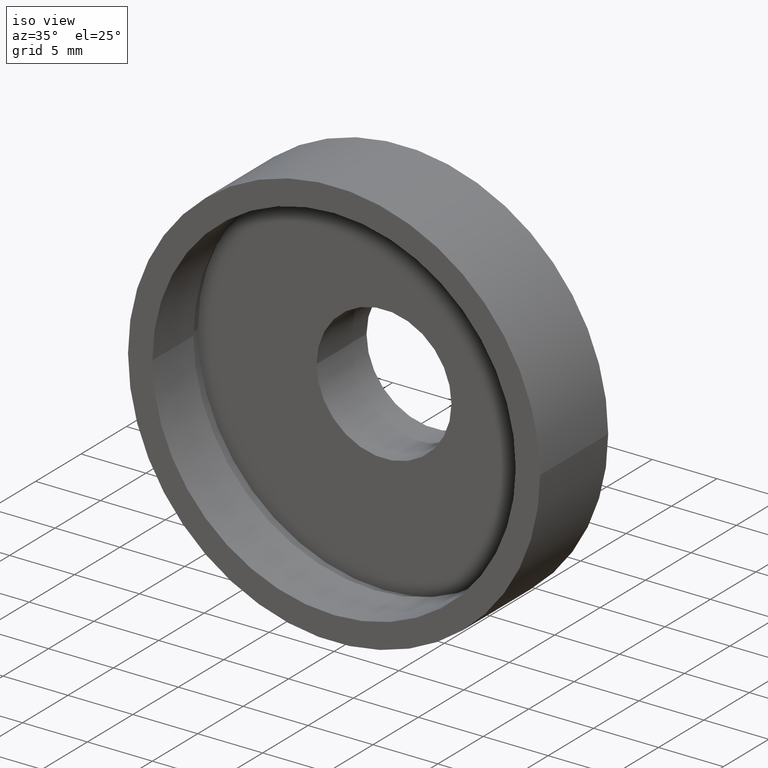
[diagram: clean part render]
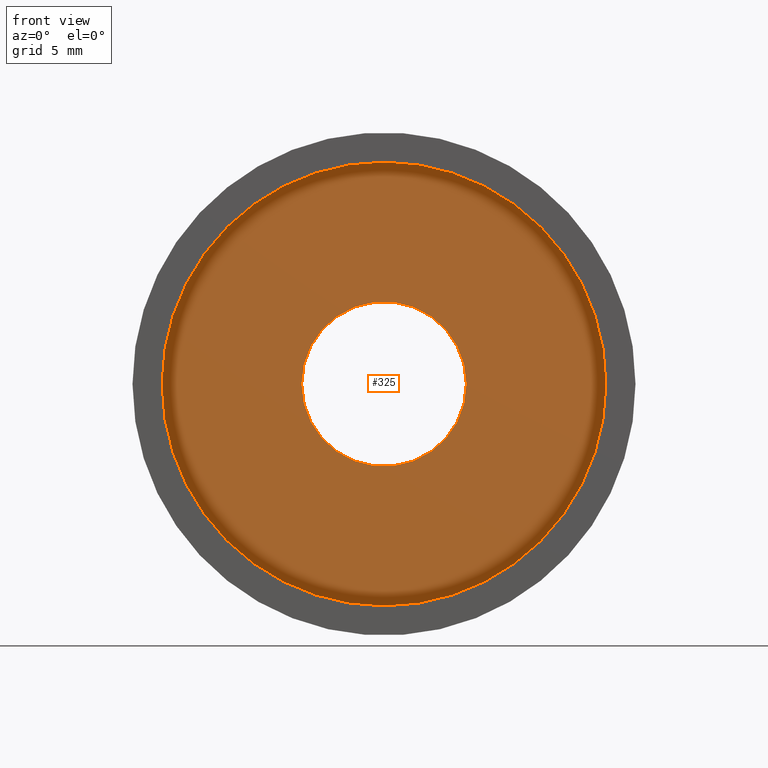
[diagram: tour spotlight — one face highlighted and labeled with its STEP entity id]
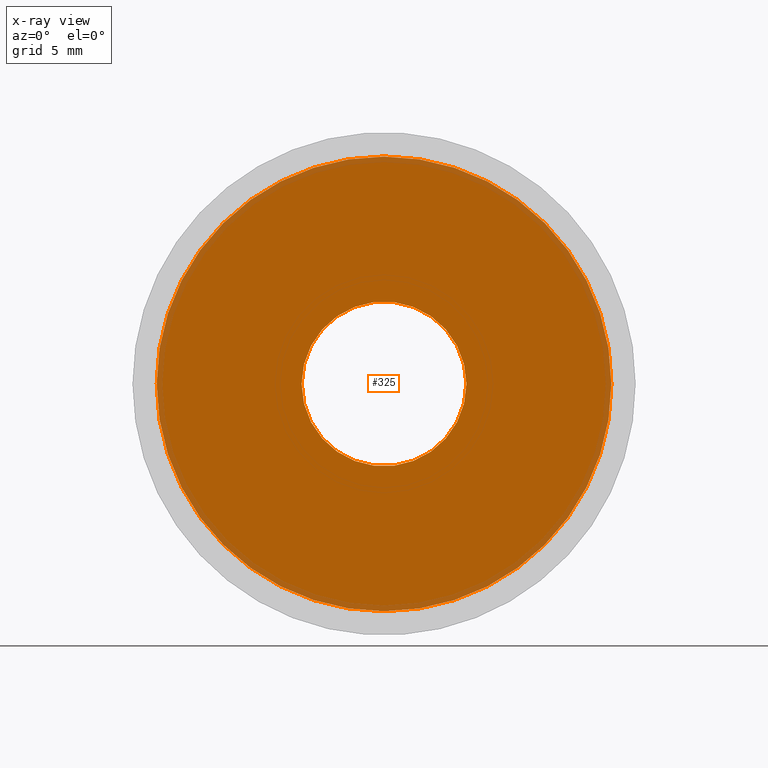
[diagram: x-ray of the same camera — body ghosted, this tour face saturated]
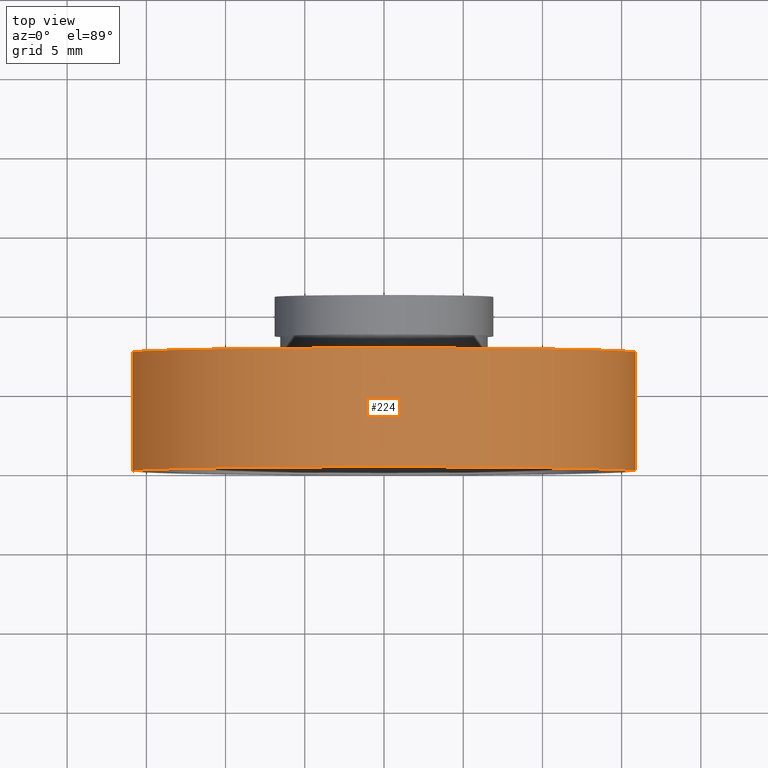
[diagram: tour spotlight — one face highlighted and labeled with its STEP entity id]
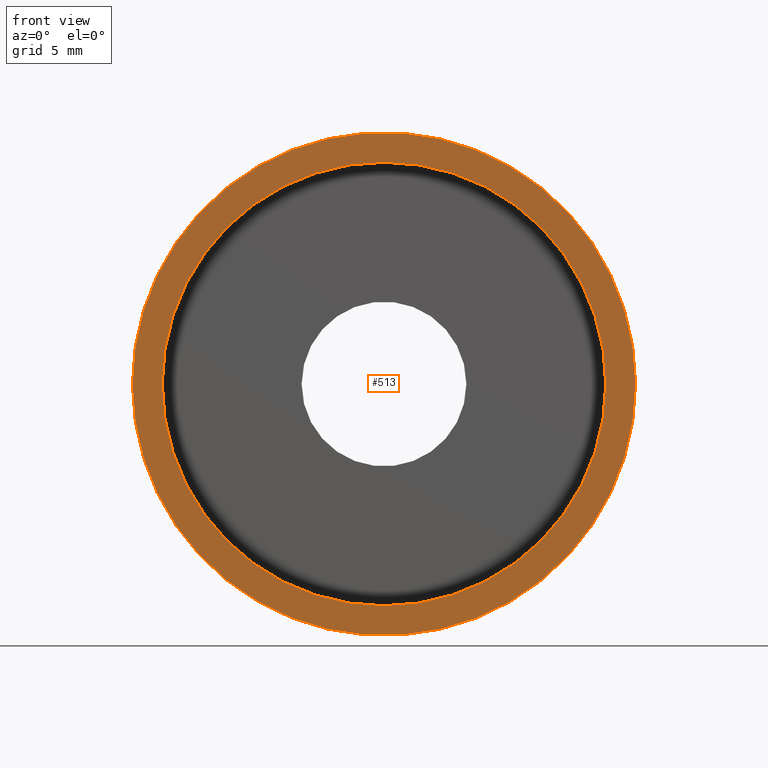
[diagram: tour spotlight — one face highlighted and labeled with its STEP entity id]
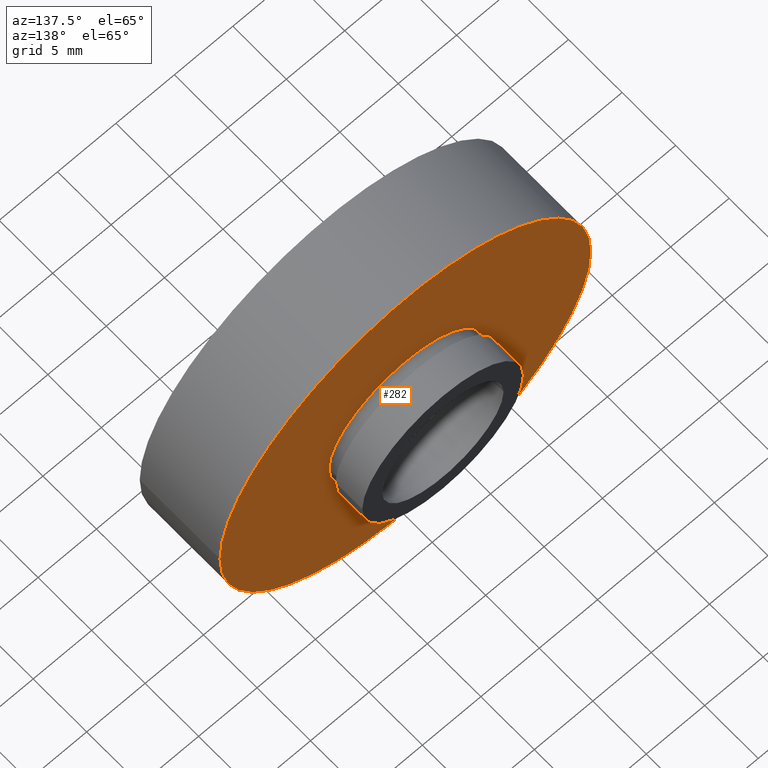
[diagram: tour spotlight — one face highlighted and labeled with its STEP entity id]
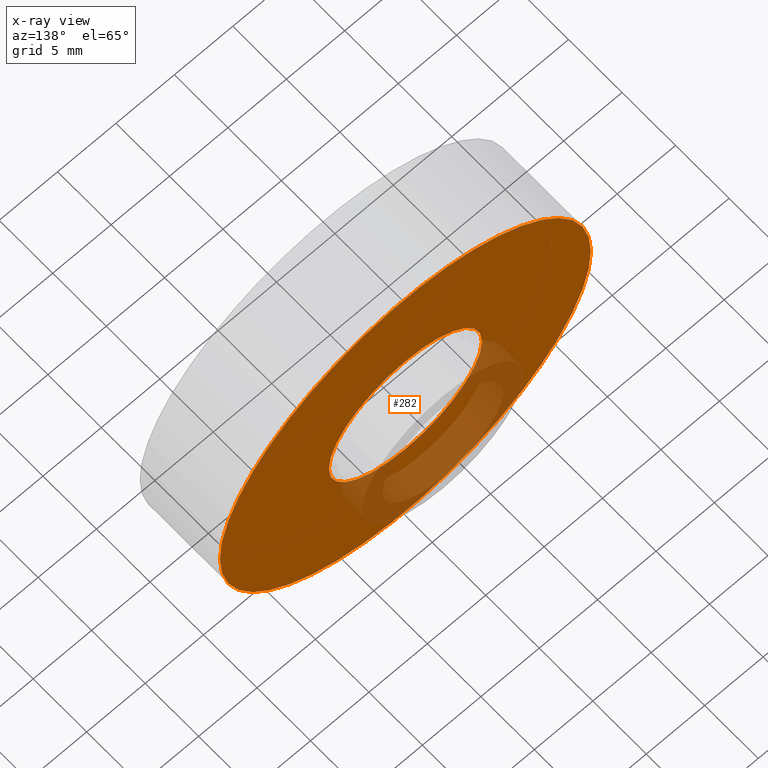
[diagram: x-ray of the same camera — body ghosted, this tour face saturated]
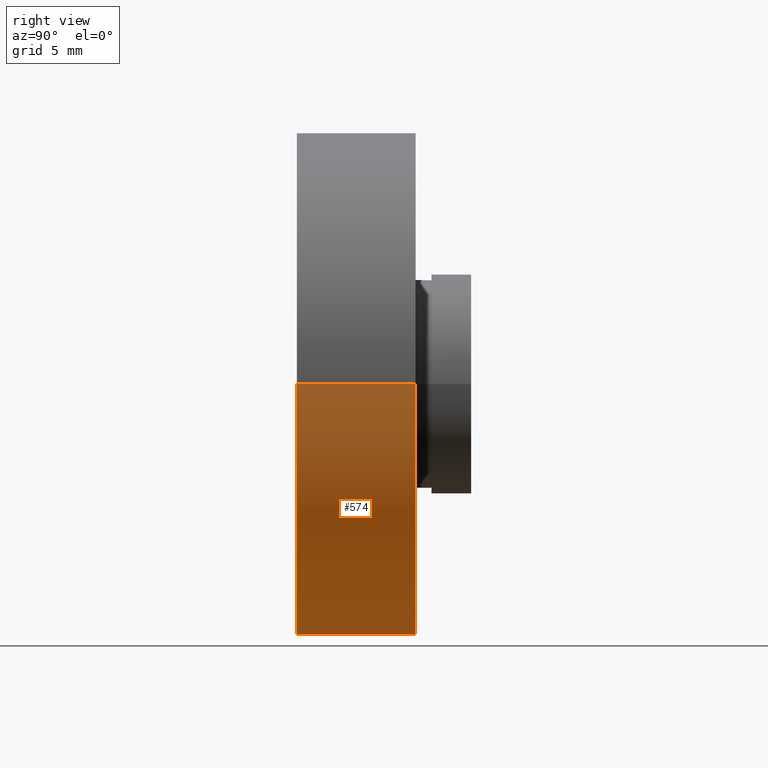
[diagram: tour spotlight — one face highlighted and labeled with its STEP entity id]
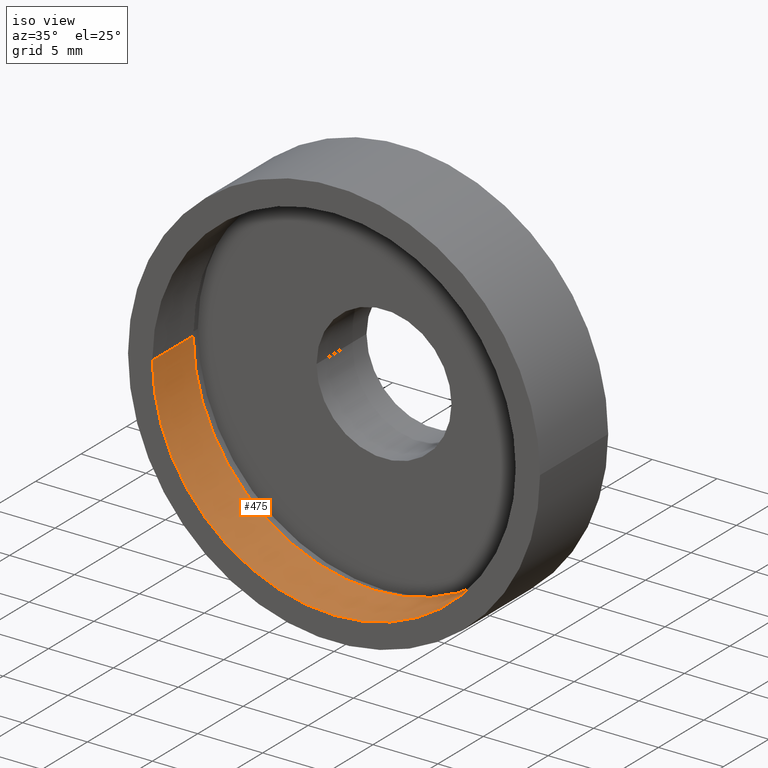
[diagram: tour spotlight — one face highlighted and labeled with its STEP entity id]
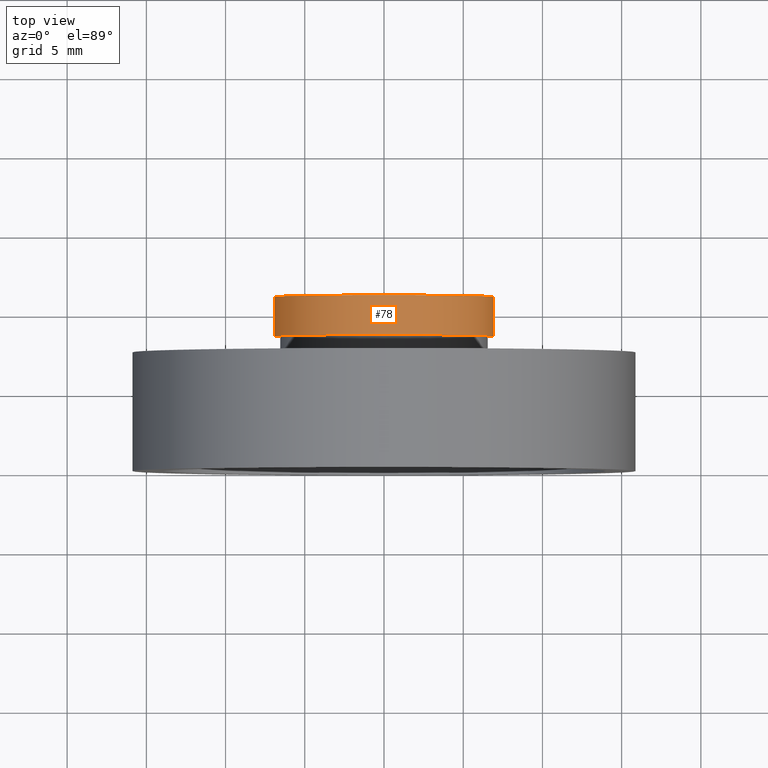
[diagram: tour spotlight — one face highlighted and labeled with its STEP entity id]
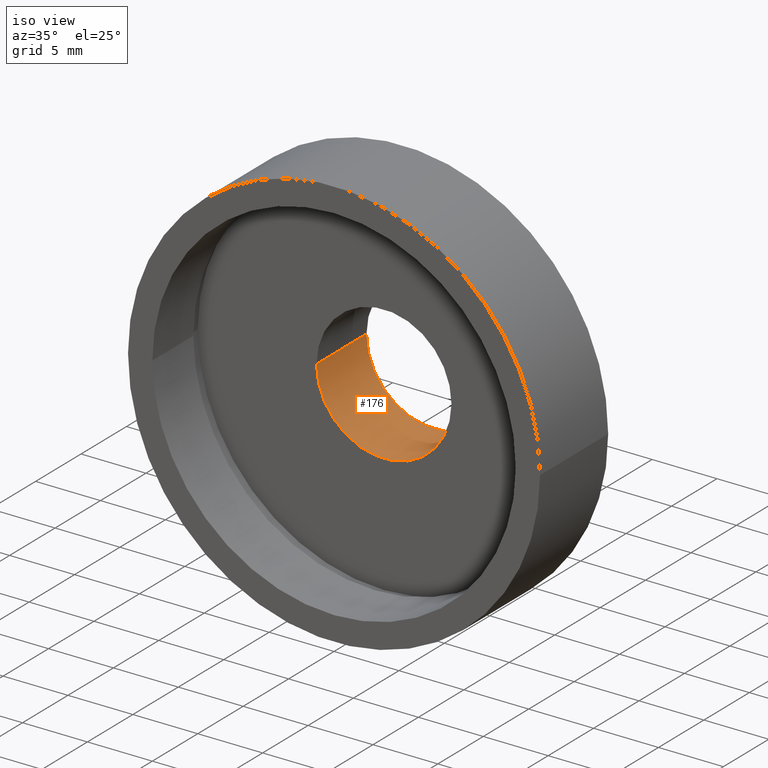
[diagram: tour spotlight — one face highlighted and labeled with its STEP entity id]
A machine part: a face-by-face anatomy tour. The part has 18 B-rep faces; the first image is the clean iso view, then the 8 largest visible faces are spotlighted one at a time (largest first), each with its STEP entity span.

Face 1 — front view, entity #325. An x-ray twin of the same camera follows (body ghosted, this face saturated) — the face is partly hidden behind the body. In plain terms, the highlighted planar face has unit normal (-0, 1, 0).
Definition (entity closure, byte-faithful):
#2 = DIRECTION ( 'NONE',  ( -1.000000000000000000, -1.668003342285391300E-016, 0.0000000000000000000 ) ) ;
#12 = CARTESIAN_POINT ( 'NONE',  ( 14.35000000000000100, 5.500000000000000000, 1.757368156776452000E-015 ) ) ;
#28 = DIRECTION ( 'NONE',  ( -1.000000000000000000, -1.668003342285391300E-016, 0.0000000000000000000 ) ) ;
#41 = DIRECTION ( 'NONE',  ( -1.000000000000000000, -1.208866533781747200E-016, 0.0000000000000000000 ) ) ;
#55 = CARTESIAN_POINT ( 'NONE',  ( -14.34999999999999800, 5.499999999999996400, 0.0000000000000000000 ) ) ;
#64 = AXIS2_PLACEMENT_3D ( 'NONE', #77, #223, #28 ) ;
#70 = CIRCLE ( 'NONE', #162, 14.35000000000000000 ) ;
#73 = ORIENTED_EDGE ( 'NONE', *, *, #322, .F. ) ;
#77 = CARTESIAN_POINT ( 'NONE',  ( 1.394385078907592800E-015, 5.500000000000000000, 0.0000000000000000000 ) ) ;
#112 = FACE_OUTER_BOUND ( 'NONE', #326, .T. ) ;
#122 = VERTEX_POINT ( 'NONE', #55 ) ;
#123 = ORIENTED_EDGE ( 'NONE', *, *, #602, .F. ) ;
#129 = VERTEX_POINT ( 'NONE', #12 ) ;
#146 = AXIS2_PLACEMENT_3D ( 'NONE', #518, #466, #175 ) ;
#162 = AXIS2_PLACEMENT_3D ( 'NONE', #388, #196, #41 ) ;
#169 = CARTESIAN_POINT ( 'NONE',  ( 1.394385078907593000E-015, 5.499999999999998200, 0.0000000000000000000 ) ) ;
#175 = DIRECTION ( 'NONE',  ( -1.000000000000000000, -1.224646799147351000E-016, 0.0000000000000000000 ) ) ;
#193 = ORIENTED_EDGE ( 'NONE', *, *, #274, .T. ) ;
#196 = DIRECTION ( 'NONE',  ( -1.224646799147351000E-016, 1.000000000000000000, -0.0000000000000000000 ) ) ;
#208 = VERTEX_POINT ( 'NONE', #314 ) ;
#210 = AXIS2_PLACEMENT_3D ( 'NONE', #169, #323, #370 ) ;
#218 = VERTEX_POINT ( 'NONE', #259 ) ;
#223 = DIRECTION ( 'NONE',  ( -1.224646799147351000E-016, 1.000000000000000000, -0.0000000000000000000 ) ) ;
#228 = FACE_BOUND ( 'NONE', #352, .T. ) ;
#259 = CARTESIAN_POINT ( 'NONE',  ( 5.200000000000001100, 5.500000000000000900, 6.368163355566236400E-016 ) ) ;
#260 = AXIS2_PLACEMENT_3D ( 'NONE', #442, #586, #2 ) ;
#274 = EDGE_CURVE ( 'NONE', #208, #218, #549, .T. ) ;
#314 = CARTESIAN_POINT ( 'NONE',  ( -5.199999999999998400, 5.499999999999999100, 0.0000000000000000000 ) ) ;
#322 = EDGE_CURVE ( 'NONE', #122, #129, #406, .T. ) ;
#323 = DIRECTION ( 'NONE',  ( -1.224646799147351000E-016, 1.000000000000000000, -0.0000000000000000000 ) ) ;
#325 = ADVANCED_FACE ( 'NONE', ( #112, #228 ), #510, .F. ) ;
#326 = EDGE_LOOP ( 'NONE', ( #73, #123 ) ) ;
#352 = EDGE_LOOP ( 'NONE', ( #193, #380 ) ) ;
#370 = DIRECTION ( 'NONE',  ( -1.000000000000000000, -1.208866533781747200E-016, 0.0000000000000000000 ) ) ;
#380 = ORIENTED_EDGE ( 'NONE', *, *, #619, .T. ) ;
#388 = CARTESIAN_POINT ( 'NONE',  ( 1.394385078907593000E-015, 5.499999999999998200, 0.0000000000000000000 ) ) ;
#406 = CIRCLE ( 'NONE', #210, 14.35000000000000000 ) ;
#442 = CARTESIAN_POINT ( 'NONE',  ( 1.394385078907592800E-015, 5.500000000000000000, 0.0000000000000000000 ) ) ;
#466 = DIRECTION ( 'NONE',  ( -1.224646799147351000E-016, 1.000000000000000000, 0.0000000000000000000 ) ) ;
#510 = PLANE ( 'NONE',  #146 ) ;
#518 = CARTESIAN_POINT ( 'NONE',  ( 5.200000000000001100, 5.499999999999999100, 0.0000000000000000000 ) ) ;
#549 = CIRCLE ( 'NONE', #64, 5.200000000000000200 ) ;
#586 = DIRECTION ( 'NONE',  ( -1.224646799147351000E-016, 1.000000000000000000, -0.0000000000000000000 ) ) ;
#602 = EDGE_CURVE ( 'NONE', #129, #122, #70, .T. ) ;
#613 = CIRCLE ( 'NONE', #260, 5.200000000000000200 ) ;
#619 = EDGE_CURVE ( 'NONE', #218, #208, #613, .T. ) ;

Face 2 — top view, entity #224. In plain terms, the highlighted cylindrical surface (partial cylindrical patch) has radius 15.875 mm, axis along (-0, 1, -0).
Definition (entity closure, byte-faithful):
#35 = CARTESIAN_POINT ( 'NONE',  ( 15.87500000000000000, 16.88601823708208000, 1.944126793646423200E-015 ) ) ;
#45 = VECTOR ( 'NONE', #124, 1000.000000000000000 ) ;
#63 = CARTESIAN_POINT ( 'NONE',  ( 0.0000000000000000000, 16.88601823708207700, 0.0000000000000000000 ) ) ;
#66 = VERTEX_POINT ( 'NONE', #544 ) ;
#67 = DIRECTION ( 'NONE',  ( -1.000000000000000000, -2.185478394931410600E-016, 0.0000000000000000000 ) ) ;
#88 = LINE ( 'NONE', #316, #45 ) ;
#96 = CARTESIAN_POINT ( 'NONE',  ( -15.87500000000000000, 7.499999999999996400, 0.0000000000000000000 ) ) ;
#124 = DIRECTION ( 'NONE',  ( -1.224646799147351000E-016, 1.000000000000000000, -0.0000000000000000000 ) ) ;
#127 = CYLINDRICAL_SURFACE ( 'NONE', #421, 15.87500000000000000 ) ;
#156 = EDGE_CURVE ( 'NONE', #344, #622, #439, .T. ) ;
#177 = EDGE_LOOP ( 'NONE', ( #319, #536, #604, #211 ) ) ;
#181 = FACE_OUTER_BOUND ( 'NONE', #177, .T. ) ;
#205 = LINE ( 'NONE', #35, #580 ) ;
#206 = DIRECTION ( 'NONE',  ( -1.224646799147351000E-016, 1.000000000000000000, -0.0000000000000000000 ) ) ;
#211 = ORIENTED_EDGE ( 'NONE', *, *, #247, .F. ) ;
#224 = ADVANCED_FACE ( 'NONE', ( #181 ), #127, .T. ) ;
#241 = CARTESIAN_POINT ( 'NONE',  ( 15.87500000000000000, -1.525320158307194900E-015, 1.944126793646423200E-015 ) ) ;
#247 = EDGE_CURVE ( 'NONE', #344, #520, #88, .T. ) ;
#255 = AXIS2_PLACEMENT_3D ( 'NONE', #538, #398, #541 ) ;
#299 = EDGE_CURVE ( 'NONE', #520, #66, #365, .T. ) ;
#316 = CARTESIAN_POINT ( 'NONE',  ( -15.87500000000000000, 16.88601823708207300, 0.0000000000000000000 ) ) ;
#318 = DIRECTION ( 'NONE',  ( -1.224646799147351000E-016, 1.000000000000000000, -0.0000000000000000000 ) ) ;
#319 = ORIENTED_EDGE ( 'NONE', *, *, #156, .T. ) ;
#321 = DIRECTION ( 'NONE',  ( -1.000000000000000000, -1.092739197465705300E-016, 0.0000000000000000000 ) ) ;
#344 = VERTEX_POINT ( 'NONE', #369 ) ;
#365 = CIRCLE ( 'NONE', #451, 15.87500000000000000 ) ;
#369 = CARTESIAN_POINT ( 'NONE',  ( -15.87499999999999300, -5.413573745600033100E-015, 0.0000000000000000000 ) ) ;
#398 = DIRECTION ( 'NONE',  ( -1.224646799147351000E-016, 1.000000000000000000, -0.0000000000000000000 ) ) ;
#421 = AXIS2_PLACEMENT_3D ( 'NONE', #63, #206, #67 ) ;
#439 = CIRCLE ( 'NONE', #255, 15.87499999999999600 ) ;
#451 = AXIS2_PLACEMENT_3D ( 'NONE', #511, #318, #321 ) ;
#460 = EDGE_CURVE ( 'NONE', #622, #66, #205, .T. ) ;
#473 = DIRECTION ( 'NONE',  ( -1.224646799147351000E-016, 1.000000000000000000, -0.0000000000000000000 ) ) ;
#511 = CARTESIAN_POINT ( 'NONE',  ( 1.149455719078122700E-015, 7.499999999999998200, 0.0000000000000000000 ) ) ;
#520 = VERTEX_POINT ( 'NONE', #96 ) ;
#536 = ORIENTED_EDGE ( 'NONE', *, *, #460, .T. ) ;
#538 = CARTESIAN_POINT ( 'NONE',  ( 2.067940818438636500E-015, -3.469446951953614200E-015, 0.0000000000000000000 ) ) ;
#541 = DIRECTION ( 'NONE',  ( -1.000000000000000000, -1.224646799147350700E-016, 0.0000000000000000000 ) ) ;
#544 = CARTESIAN_POINT ( 'NONE',  ( 15.87500000000000000, 7.500000000000000000, 1.944126793646423200E-015 ) ) ;
#580 = VECTOR ( 'NONE', #473, 1000.000000000000000 ) ;
#604 = ORIENTED_EDGE ( 'NONE', *, *, #299, .F. ) ;
#622 = VERTEX_POINT ( 'NONE', #241 ) ;

Face 3 — front view, entity #513. In plain terms, the highlighted planar face has unit normal (-0, 1, 0).
Definition (entity closure, byte-faithful):
#23 = DIRECTION ( 'NONE',  ( -1.000000000000000000, -1.224646799147350700E-016, 0.0000000000000000000 ) ) ;
#56 = VERTEX_POINT ( 'NONE', #145 ) ;
#71 = CIRCLE ( 'NONE', #225, 14.00000000000000000 ) ;
#87 = DIRECTION ( 'NONE',  ( -1.224646799147351000E-016, 1.000000000000000000, -0.0000000000000000000 ) ) ;
#101 = CARTESIAN_POINT ( 'NONE',  ( 14.00000000000000200, 1.714505518806291500E-015, 1.714505518806294600E-015 ) ) ;
#140 = FACE_OUTER_BOUND ( 'NONE', #200, .T. ) ;
#145 = CARTESIAN_POINT ( 'NONE',  ( -13.99999999999999800, -1.714505518806291500E-015, 0.0000000000000000000 ) ) ;
#156 = EDGE_CURVE ( 'NONE', #344, #622, #439, .T. ) ;
#157 = ORIENTED_EDGE ( 'NONE', *, *, #444, .T. ) ;
#164 = VERTEX_POINT ( 'NONE', #101 ) ;
#182 = CARTESIAN_POINT ( 'NONE',  ( 15.87500000000000000, -2.166671187435640300E-031, 0.0000000000000000000 ) ) ;
#200 = EDGE_LOOP ( 'NONE', ( #575, #597 ) ) ;
#222 = ORIENTED_EDGE ( 'NONE', *, *, #450, .T. ) ;
#225 = AXIS2_PLACEMENT_3D ( 'NONE', #519, #384, #377 ) ;
#235 = PLANE ( 'NONE',  #600 ) ;
#237 = CIRCLE ( 'NONE', #568, 15.87499999999999600 ) ;
#241 = CARTESIAN_POINT ( 'NONE',  ( 15.87500000000000000, -1.525320158307194900E-015, 1.944126793646423200E-015 ) ) ;
#255 = AXIS2_PLACEMENT_3D ( 'NONE', #538, #398, #541 ) ;
#284 = DIRECTION ( 'NONE',  ( -1.000000000000000000, -1.224646799147351000E-016, 0.0000000000000000000 ) ) ;
#306 = AXIS2_PLACEMENT_3D ( 'NONE', #429, #87, #284 ) ;
#315 = EDGE_CURVE ( 'NONE', #622, #344, #237, .T. ) ;
#324 = FACE_BOUND ( 'NONE', #448, .T. ) ;
#344 = VERTEX_POINT ( 'NONE', #369 ) ;
#369 = CARTESIAN_POINT ( 'NONE',  ( -15.87499999999999300, -5.413573745600033100E-015, 0.0000000000000000000 ) ) ;
#377 = DIRECTION ( 'NONE',  ( -1.000000000000000000, -1.224646799147351000E-016, 0.0000000000000000000 ) ) ;
#384 = DIRECTION ( 'NONE',  ( -1.224646799147351000E-016, 1.000000000000000000, -0.0000000000000000000 ) ) ;
#398 = DIRECTION ( 'NONE',  ( -1.224646799147351000E-016, 1.000000000000000000, -0.0000000000000000000 ) ) ;
#429 = CARTESIAN_POINT ( 'NONE',  ( 2.067940818438636100E-015, 0.0000000000000000000, 0.0000000000000000000 ) ) ;
#439 = CIRCLE ( 'NONE', #255, 15.87499999999999600 ) ;
#444 = EDGE_CURVE ( 'NONE', #164, #56, #472, .T. ) ;
#448 = EDGE_LOOP ( 'NONE', ( #222, #157 ) ) ;
#450 = EDGE_CURVE ( 'NONE', #56, #164, #71, .T. ) ;
#462 = CARTESIAN_POINT ( 'NONE',  ( 2.067940818438636500E-015, -3.469446951953614200E-015, 0.0000000000000000000 ) ) ;
#472 = CIRCLE ( 'NONE', #306, 14.00000000000000000 ) ;
#513 = ADVANCED_FACE ( 'NONE', ( #140, #324 ), #235, .F. ) ;
#519 = CARTESIAN_POINT ( 'NONE',  ( 2.067940818438636100E-015, 0.0000000000000000000, 0.0000000000000000000 ) ) ;
#521 = DIRECTION ( 'NONE',  ( -1.000000000000000000, -1.224646799147351000E-016, 0.0000000000000000000 ) ) ;
#538 = CARTESIAN_POINT ( 'NONE',  ( 2.067940818438636500E-015, -3.469446951953614200E-015, 0.0000000000000000000 ) ) ;
#541 = DIRECTION ( 'NONE',  ( -1.000000000000000000, -1.224646799147350700E-016, 0.0000000000000000000 ) ) ;
#563 = DIRECTION ( 'NONE',  ( -1.224646799147351000E-016, 1.000000000000000000, -0.0000000000000000000 ) ) ;
#568 = AXIS2_PLACEMENT_3D ( 'NONE', #462, #563, #23 ) ;
#575 = ORIENTED_EDGE ( 'NONE', *, *, #156, .F. ) ;
#597 = ORIENTED_EDGE ( 'NONE', *, *, #315, .F. ) ;
#600 = AXIS2_PLACEMENT_3D ( 'NONE', #182, #618, #521 ) ;
#618 = DIRECTION ( 'NONE',  ( -1.224646799147351000E-016, 1.000000000000000000, 0.0000000000000000000 ) ) ;
#622 = VERTEX_POINT ( 'NONE', #241 ) ;

Face 4 — auxiliary view, entity #282. An x-ray twin of the same camera follows (body ghosted, this face saturated) — the face is partly hidden behind the body. In plain terms, the highlighted planar face has unit normal (0, -1, 0).
Definition (entity closure, byte-faithful):
#24 = DIRECTION ( 'NONE',  ( 1.224646799147351000E-016, -1.000000000000000000, 0.0000000000000000000 ) ) ;
#27 = EDGE_LOOP ( 'NONE', ( #603, #48 ) ) ;
#48 = ORIENTED_EDGE ( 'NONE', *, *, #167, .T. ) ;
#51 = CIRCLE ( 'NONE', #312, 6.549999999999999800 ) ;
#66 = VERTEX_POINT ( 'NONE', #544 ) ;
#96 = CARTESIAN_POINT ( 'NONE',  ( -15.87500000000000000, 7.499999999999996400, 0.0000000000000000000 ) ) ;
#117 = DIRECTION ( 'NONE',  ( -1.224646799147351000E-016, 1.000000000000000000, -0.0000000000000000000 ) ) ;
#118 = DIRECTION ( 'NONE',  ( -1.000000000000000000, -1.092739197465705300E-016, 0.0000000000000000000 ) ) ;
#167 = EDGE_CURVE ( 'NONE', #66, #520, #526, .T. ) ;
#171 = CARTESIAN_POINT ( 'NONE',  ( 6.550000000000000700, 7.499999999999999100, 0.0000000000000000000 ) ) ;
#178 = EDGE_CURVE ( 'NONE', #381, #426, #295, .T. ) ;
#187 = DIRECTION ( 'NONE',  ( -1.000000000000000000, -1.324216393875425300E-016, 0.0000000000000000000 ) ) ;
#213 = DIRECTION ( 'NONE',  ( -1.224646799147351000E-016, 1.000000000000000000, -0.0000000000000000000 ) ) ;
#242 = AXIS2_PLACEMENT_3D ( 'NONE', #498, #213, #366 ) ;
#244 = AXIS2_PLACEMENT_3D ( 'NONE', #171, #24, #419 ) ;
#272 = PLANE ( 'NONE',  #244 ) ;
#273 = CARTESIAN_POINT ( 'NONE',  ( 6.550000000000000700, 7.500000000000000900, 8.021436534415164200E-016 ) ) ;
#282 = ADVANCED_FACE ( 'NONE', ( #487, #378 ), #272, .F. ) ;
#295 = CIRCLE ( 'NONE', #242, 6.549999999999999800 ) ;
#299 = EDGE_CURVE ( 'NONE', #520, #66, #365, .T. ) ;
#312 = AXIS2_PLACEMENT_3D ( 'NONE', #350, #445, #187 ) ;
#318 = DIRECTION ( 'NONE',  ( -1.224646799147351000E-016, 1.000000000000000000, -0.0000000000000000000 ) ) ;
#321 = DIRECTION ( 'NONE',  ( -1.000000000000000000, -1.092739197465705300E-016, 0.0000000000000000000 ) ) ;
#327 = CARTESIAN_POINT ( 'NONE',  ( -6.549999999999998900, 7.499999999999999100, 0.0000000000000000000 ) ) ;
#350 = CARTESIAN_POINT ( 'NONE',  ( 1.149455719078122500E-015, 7.500000000000000000, 0.0000000000000000000 ) ) ;
#365 = CIRCLE ( 'NONE', #451, 15.87500000000000000 ) ;
#366 = DIRECTION ( 'NONE',  ( -1.000000000000000000, -1.324216393875425300E-016, 0.0000000000000000000 ) ) ;
#378 = FACE_OUTER_BOUND ( 'NONE', #27, .T. ) ;
#381 = VERTEX_POINT ( 'NONE', #273 ) ;
#419 = DIRECTION ( 'NONE',  ( 1.000000000000000000, 1.224646799147351000E-016, 0.0000000000000000000 ) ) ;
#426 = VERTEX_POINT ( 'NONE', #327 ) ;
#445 = DIRECTION ( 'NONE',  ( -1.224646799147351000E-016, 1.000000000000000000, -0.0000000000000000000 ) ) ;
#451 = AXIS2_PLACEMENT_3D ( 'NONE', #511, #318, #321 ) ;
#454 = ORIENTED_EDGE ( 'NONE', *, *, #593, .F. ) ;
#477 = EDGE_LOOP ( 'NONE', ( #454, #615 ) ) ;
#487 = FACE_BOUND ( 'NONE', #477, .T. ) ;
#498 = CARTESIAN_POINT ( 'NONE',  ( 1.149455719078122500E-015, 7.500000000000000000, 0.0000000000000000000 ) ) ;
#511 = CARTESIAN_POINT ( 'NONE',  ( 1.149455719078122700E-015, 7.499999999999998200, 0.0000000000000000000 ) ) ;
#520 = VERTEX_POINT ( 'NONE', #96 ) ;
#526 = CIRCLE ( 'NONE', #557, 15.87500000000000000 ) ;
#544 = CARTESIAN_POINT ( 'NONE',  ( 15.87500000000000000, 7.500000000000000000, 1.944126793646423200E-015 ) ) ;
#553 = CARTESIAN_POINT ( 'NONE',  ( 1.149455719078122700E-015, 7.499999999999998200, 0.0000000000000000000 ) ) ;
#557 = AXIS2_PLACEMENT_3D ( 'NONE', #553, #117, #118 ) ;
#593 = EDGE_CURVE ( 'NONE', #426, #381, #51, .T. ) ;
#603 = ORIENTED_EDGE ( 'NONE', *, *, #299, .T. ) ;
#615 = ORIENTED_EDGE ( 'NONE', *, *, #178, .F. ) ;

Face 5 — right view, entity #574. In plain terms, the highlighted cylindrical surface (partial cylindrical patch) has radius 15.875 mm, axis along (-0, 1, -0).
Definition (entity closure, byte-faithful):
#8 = CARTESIAN_POINT ( 'NONE',  ( 0.0000000000000000000, 16.88601823708207700, 0.0000000000000000000 ) ) ;
#15 = ORIENTED_EDGE ( 'NONE', *, *, #315, .T. ) ;
#23 = DIRECTION ( 'NONE',  ( -1.000000000000000000, -1.224646799147350700E-016, 0.0000000000000000000 ) ) ;
#35 = CARTESIAN_POINT ( 'NONE',  ( 15.87500000000000000, 16.88601823708208000, 1.944126793646423200E-015 ) ) ;
#45 = VECTOR ( 'NONE', #124, 1000.000000000000000 ) ;
#46 = DIRECTION ( 'NONE',  ( -1.000000000000000000, -2.185478394931410600E-016, 0.0000000000000000000 ) ) ;
#66 = VERTEX_POINT ( 'NONE', #544 ) ;
#88 = LINE ( 'NONE', #316, #45 ) ;
#95 = ORIENTED_EDGE ( 'NONE', *, *, #460, .F. ) ;
#96 = CARTESIAN_POINT ( 'NONE',  ( -15.87500000000000000, 7.499999999999996400, 0.0000000000000000000 ) ) ;
#100 = DIRECTION ( 'NONE',  ( -1.224646799147351000E-016, 1.000000000000000000, -0.0000000000000000000 ) ) ;
#117 = DIRECTION ( 'NONE',  ( -1.224646799147351000E-016, 1.000000000000000000, -0.0000000000000000000 ) ) ;
#118 = DIRECTION ( 'NONE',  ( -1.000000000000000000, -1.092739197465705300E-016, 0.0000000000000000000 ) ) ;
#124 = DIRECTION ( 'NONE',  ( -1.224646799147351000E-016, 1.000000000000000000, -0.0000000000000000000 ) ) ;
#153 = CYLINDRICAL_SURFACE ( 'NONE', #501, 15.87500000000000000 ) ;
#167 = EDGE_CURVE ( 'NONE', #66, #520, #526, .T. ) ;
#205 = LINE ( 'NONE', #35, #580 ) ;
#237 = CIRCLE ( 'NONE', #568, 15.87499999999999600 ) ;
#241 = CARTESIAN_POINT ( 'NONE',  ( 15.87500000000000000, -1.525320158307194900E-015, 1.944126793646423200E-015 ) ) ;
#247 = EDGE_CURVE ( 'NONE', #344, #520, #88, .T. ) ;
#315 = EDGE_CURVE ( 'NONE', #622, #344, #237, .T. ) ;
#316 = CARTESIAN_POINT ( 'NONE',  ( -15.87500000000000000, 16.88601823708207300, 0.0000000000000000000 ) ) ;
#342 = ORIENTED_EDGE ( 'NONE', *, *, #247, .T. ) ;
#343 = ORIENTED_EDGE ( 'NONE', *, *, #167, .F. ) ;
#344 = VERTEX_POINT ( 'NONE', #369 ) ;
#369 = CARTESIAN_POINT ( 'NONE',  ( -15.87499999999999300, -5.413573745600033100E-015, 0.0000000000000000000 ) ) ;
#401 = FACE_OUTER_BOUND ( 'NONE', #504, .T. ) ;
#460 = EDGE_CURVE ( 'NONE', #622, #66, #205, .T. ) ;
#462 = CARTESIAN_POINT ( 'NONE',  ( 2.067940818438636500E-015, -3.469446951953614200E-015, 0.0000000000000000000 ) ) ;
#473 = DIRECTION ( 'NONE',  ( -1.224646799147351000E-016, 1.000000000000000000, -0.0000000000000000000 ) ) ;
#501 = AXIS2_PLACEMENT_3D ( 'NONE', #8, #100, #46 ) ;
#504 = EDGE_LOOP ( 'NONE', ( #95, #15, #342, #343 ) ) ;
#520 = VERTEX_POINT ( 'NONE', #96 ) ;
#526 = CIRCLE ( 'NONE', #557, 15.87500000000000000 ) ;
#544 = CARTESIAN_POINT ( 'NONE',  ( 15.87500000000000000, 7.500000000000000000, 1.944126793646423200E-015 ) ) ;
#553 = CARTESIAN_POINT ( 'NONE',  ( 1.149455719078122700E-015, 7.499999999999998200, 0.0000000000000000000 ) ) ;
#557 = AXIS2_PLACEMENT_3D ( 'NONE', #553, #117, #118 ) ;
#563 = DIRECTION ( 'NONE',  ( -1.224646799147351000E-016, 1.000000000000000000, -0.0000000000000000000 ) ) ;
#568 = AXIS2_PLACEMENT_3D ( 'NONE', #462, #563, #23 ) ;
#574 = ADVANCED_FACE ( 'NONE', ( #401 ), #153, .T. ) ;
#580 = VECTOR ( 'NONE', #473, 1000.000000000000000 ) ;
#622 = VERTEX_POINT ( 'NONE', #241 ) ;

Face 6 — iso view, entity #475. In plain terms, the highlighted cylindrical surface (partial cylindrical patch) has radius 14 mm, axis along (-0, 1, -0).
Definition (entity closure, byte-faithful):
#17 = EDGE_CURVE ( 'NONE', #591, #440, #415, .T. ) ;
#56 = VERTEX_POINT ( 'NONE', #145 ) ;
#74 = CARTESIAN_POINT ( 'NONE',  ( -13.99999999999999800, 4.499999999999997300, 0.0000000000000000000 ) ) ;
#87 = DIRECTION ( 'NONE',  ( -1.224646799147351000E-016, 1.000000000000000000, -0.0000000000000000000 ) ) ;
#91 = AXIS2_PLACEMENT_3D ( 'NONE', #345, #391, #99 ) ;
#99 = DIRECTION ( 'NONE',  ( -1.000000000000000000, -1.239088197126290800E-016, 0.0000000000000000000 ) ) ;
#101 = CARTESIAN_POINT ( 'NONE',  ( 14.00000000000000200, 1.714505518806291500E-015, 1.714505518806294600E-015 ) ) ;
#136 = DIRECTION ( 'NONE',  ( -1.000000000000000000, 0.0000000000000000000, 0.0000000000000000000 ) ) ;
#145 = CARTESIAN_POINT ( 'NONE',  ( -13.99999999999999800, -1.714505518806291500E-015, 0.0000000000000000000 ) ) ;
#164 = VERTEX_POINT ( 'NONE', #101 ) ;
#173 = LINE ( 'NONE', #605, #246 ) ;
#233 = DIRECTION ( 'NONE',  ( -1.224646799147351000E-016, 1.000000000000000000, -0.0000000000000000000 ) ) ;
#236 = DIRECTION ( 'NONE',  ( -1.224646799147351000E-016, 1.000000000000000000, -0.0000000000000000000 ) ) ;
#246 = VECTOR ( 'NONE', #425, 1000.000000000000000 ) ;
#261 = VECTOR ( 'NONE', #236, 1000.000000000000000 ) ;
#275 = AXIS2_PLACEMENT_3D ( 'NONE', #617, #233, #136 ) ;
#284 = DIRECTION ( 'NONE',  ( -1.000000000000000000, -1.224646799147351000E-016, 0.0000000000000000000 ) ) ;
#306 = AXIS2_PLACEMENT_3D ( 'NONE', #429, #87, #284 ) ;
#338 = CARTESIAN_POINT ( 'NONE',  ( 14.00000000000000200, 4.500000000000000900, 1.714505518806294600E-015 ) ) ;
#345 = CARTESIAN_POINT ( 'NONE',  ( 1.516849758822328100E-015, 4.499999999999999100, 0.0000000000000000000 ) ) ;
#361 = ORIENTED_EDGE ( 'NONE', *, *, #444, .F. ) ;
#391 = DIRECTION ( 'NONE',  ( -1.224646799147351000E-016, 1.000000000000000000, -0.0000000000000000000 ) ) ;
#392 = CYLINDRICAL_SURFACE ( 'NONE', #275, 14.00000000000000000 ) ;
#395 = EDGE_LOOP ( 'NONE', ( #361, #490, #508, #433 ) ) ;
#400 = EDGE_CURVE ( 'NONE', #164, #591, #173, .T. ) ;
#415 = CIRCLE ( 'NONE', #91, 14.00000000000000000 ) ;
#425 = DIRECTION ( 'NONE',  ( -1.224646799147351000E-016, 1.000000000000000000, -0.0000000000000000000 ) ) ;
#429 = CARTESIAN_POINT ( 'NONE',  ( 2.067940818438636100E-015, 0.0000000000000000000, 0.0000000000000000000 ) ) ;
#431 = LINE ( 'NONE', #528, #261 ) ;
#433 = ORIENTED_EDGE ( 'NONE', *, *, #514, .F. ) ;
#440 = VERTEX_POINT ( 'NONE', #74 ) ;
#444 = EDGE_CURVE ( 'NONE', #164, #56, #472, .T. ) ;
#472 = CIRCLE ( 'NONE', #306, 14.00000000000000000 ) ;
#475 = ADVANCED_FACE ( 'NONE', ( #502 ), #392, .F. ) ;
#490 = ORIENTED_EDGE ( 'NONE', *, *, #400, .T. ) ;
#502 = FACE_OUTER_BOUND ( 'NONE', #395, .T. ) ;
#508 = ORIENTED_EDGE ( 'NONE', *, *, #17, .T. ) ;
#514 = EDGE_CURVE ( 'NONE', #56, #440, #431, .T. ) ;
#528 = CARTESIAN_POINT ( 'NONE',  ( -14.00000000000000000, 16.88601823708207700, 0.0000000000000000000 ) ) ;
#591 = VERTEX_POINT ( 'NONE', #338 ) ;
#605 = CARTESIAN_POINT ( 'NONE',  ( 14.00000000000000000, 16.88601823708207700, 1.714505518806294600E-015 ) ) ;
#617 = CARTESIAN_POINT ( 'NONE',  ( 0.0000000000000000000, 16.88601823708207700, 0.0000000000000000000 ) ) ;

Face 7 — top view, entity #78. In plain terms, the highlighted cylindrical surface (partial cylindrical patch) has radius 6.9 mm, axis along (-0, 1, -0).
Definition (entity closure, byte-faithful):
#9 = DIRECTION ( 'NONE',  ( -1.224646799147351000E-016, 1.000000000000000000, -0.0000000000000000000 ) ) ;
#57 = EDGE_CURVE ( 'NONE', #506, #360, #217, .T. ) ;
#78 = ADVANCED_FACE ( 'NONE', ( #564 ), #191, .T. ) ;
#108 = ORIENTED_EDGE ( 'NONE', *, *, #482, .F. ) ;
#144 = AXIS2_PLACEMENT_3D ( 'NONE', #353, #198, #494 ) ;
#151 = DIRECTION ( 'NONE',  ( -1.000000000000000000, 0.0000000000000000000, 0.0000000000000000000 ) ) ;
#168 = VECTOR ( 'NONE', #479, 1000.000000000000000 ) ;
#191 = CYLINDRICAL_SURFACE ( 'NONE', #144, 6.900000000000001200 ) ;
#198 = DIRECTION ( 'NONE',  ( -1.224646799147351000E-016, 1.000000000000000000, -0.0000000000000000000 ) ) ;
#217 = LINE ( 'NONE', #489, #590 ) ;
#245 = CARTESIAN_POINT ( 'NONE',  ( 7.208293393765501500E-016, 10.99999999999999600, 0.0000000000000000000 ) ) ;
#281 = CARTESIAN_POINT ( 'NONE',  ( 1.026991039163387500E-015, 8.500000000000000000, 0.0000000000000000000 ) ) ;
#288 = CARTESIAN_POINT ( 'NONE',  ( -6.900000000000001200, 16.88601823708207700, 0.0000000000000000000 ) ) ;
#293 = LINE ( 'NONE', #288, #168 ) ;
#304 = VERTEX_POINT ( 'NONE', #461 ) ;
#346 = AXIS2_PLACEMENT_3D ( 'NONE', #245, #624, #151 ) ;
#353 = CARTESIAN_POINT ( 'NONE',  ( 0.0000000000000000000, 16.88601823708207700, 0.0000000000000000000 ) ) ;
#360 = VERTEX_POINT ( 'NONE', #610 ) ;
#383 = DIRECTION ( 'NONE',  ( -1.000000000000000000, 0.0000000000000000000, 0.0000000000000000000 ) ) ;
#387 = VERTEX_POINT ( 'NONE', #516 ) ;
#427 = EDGE_LOOP ( 'NONE', ( #497, #595, #551, #108 ) ) ;
#461 = CARTESIAN_POINT ( 'NONE',  ( -6.899999999999999500, 8.500000000000000000, 0.0000000000000000000 ) ) ;
#476 = CARTESIAN_POINT ( 'NONE',  ( 6.900000000000001200, 8.500000000000000000, 8.450062914116738600E-016 ) ) ;
#479 = DIRECTION ( 'NONE',  ( -1.224646799147351000E-016, 1.000000000000000000, -0.0000000000000000000 ) ) ;
#482 = EDGE_CURVE ( 'NONE', #304, #387, #293, .T. ) ;
#489 = CARTESIAN_POINT ( 'NONE',  ( 6.900000000000001200, 16.88601823708207700, 8.450062914116738600E-016 ) ) ;
#494 = DIRECTION ( 'NONE',  ( -1.000000000000000000, 0.0000000000000000000, 0.0000000000000000000 ) ) ;
#497 = ORIENTED_EDGE ( 'NONE', *, *, #507, .T. ) ;
#506 = VERTEX_POINT ( 'NONE', #476 ) ;
#507 = EDGE_CURVE ( 'NONE', #304, #506, #554, .T. ) ;
#516 = CARTESIAN_POINT ( 'NONE',  ( -6.900000000000000400, 10.99999999999999600, 0.0000000000000000000 ) ) ;
#523 = CIRCLE ( 'NONE', #346, 6.900000000000001200 ) ;
#551 = ORIENTED_EDGE ( 'NONE', *, *, #608, .F. ) ;
#554 = CIRCLE ( 'NONE', #581, 6.900000000000000400 ) ;
#564 = FACE_OUTER_BOUND ( 'NONE', #427, .T. ) ;
#569 = DIRECTION ( 'NONE',  ( -1.224646799147351000E-016, 1.000000000000000000, -0.0000000000000000000 ) ) ;
#581 = AXIS2_PLACEMENT_3D ( 'NONE', #281, #569, #383 ) ;
#590 = VECTOR ( 'NONE', #9, 1000.000000000000000 ) ;
#595 = ORIENTED_EDGE ( 'NONE', *, *, #57, .T. ) ;
#608 = EDGE_CURVE ( 'NONE', #387, #360, #523, .T. ) ;
#610 = CARTESIAN_POINT ( 'NONE',  ( 6.900000000000002100, 10.99999999999999600, 8.450062914116738600E-016 ) ) ;
#624 = DIRECTION ( 'NONE',  ( -1.224646799147351000E-016, 1.000000000000000000, -0.0000000000000000000 ) ) ;

Face 8 — iso view, entity #176. In plain terms, the highlighted cylindrical surface (partial cylindrical patch) has radius 5.2 mm, axis along (-0, 1, -0).
Definition (entity closure, byte-faithful):
#2 = DIRECTION ( 'NONE',  ( -1.000000000000000000, -1.668003342285391300E-016, 0.0000000000000000000 ) ) ;
#6 = VECTOR ( 'NONE', #243, 1000.000000000000000 ) ;
#16 = CARTESIAN_POINT ( 'NONE',  ( -5.200000000000000200, 11.00000000000000000, 0.0000000000000000000 ) ) ;
#19 = CARTESIAN_POINT ( 'NONE',  ( 0.0000000000000000000, 16.88601823708207700, 0.0000000000000000000 ) ) ;
#22 = DIRECTION ( 'NONE',  ( -1.224646799147351000E-016, 1.000000000000000000, -0.0000000000000000000 ) ) ;
#25 = EDGE_CURVE ( 'NONE', #208, #256, #287, .T. ) ;
#62 = FACE_OUTER_BOUND ( 'NONE', #232, .T. ) ;
#68 = AXIS2_PLACEMENT_3D ( 'NONE', #397, #290, #578 ) ;
#72 = AXIS2_PLACEMENT_3D ( 'NONE', #19, #22, #596 ) ;
#79 = VECTOR ( 'NONE', #373, 1000.000000000000000 ) ;
#149 = ORIENTED_EDGE ( 'NONE', *, *, #619, .F. ) ;
#176 = ADVANCED_FACE ( 'NONE', ( #62 ), #317, .F. ) ;
#208 = VERTEX_POINT ( 'NONE', #314 ) ;
#218 = VERTEX_POINT ( 'NONE', #259 ) ;
#230 = VERTEX_POINT ( 'NONE', #547 ) ;
#232 = EDGE_LOOP ( 'NONE', ( #149, #335, #328, #584 ) ) ;
#243 = DIRECTION ( 'NONE',  ( -1.224646799147351000E-016, 1.000000000000000000, -0.0000000000000000000 ) ) ;
#256 = VERTEX_POINT ( 'NONE', #16 ) ;
#259 = CARTESIAN_POINT ( 'NONE',  ( 5.200000000000001100, 5.500000000000000900, 6.368163355566236400E-016 ) ) ;
#260 = AXIS2_PLACEMENT_3D ( 'NONE', #442, #586, #2 ) ;
#287 = LINE ( 'NONE', #481, #6 ) ;
#290 = DIRECTION ( 'NONE',  ( -1.224646799147351000E-016, 1.000000000000000000, -0.0000000000000000000 ) ) ;
#314 = CARTESIAN_POINT ( 'NONE',  ( -5.199999999999998400, 5.499999999999999100, 0.0000000000000000000 ) ) ;
#317 = CYLINDRICAL_SURFACE ( 'NONE', #72, 5.200000000000000200 ) ;
#328 = ORIENTED_EDGE ( 'NONE', *, *, #579, .T. ) ;
#334 = EDGE_CURVE ( 'NONE', #218, #230, #341, .T. ) ;
#335 = ORIENTED_EDGE ( 'NONE', *, *, #334, .T. ) ;
#341 = LINE ( 'NONE', #560, #79 ) ;
#373 = DIRECTION ( 'NONE',  ( -1.224646799147351000E-016, 1.000000000000000000, -0.0000000000000000000 ) ) ;
#397 = CARTESIAN_POINT ( 'NONE',  ( 7.208293393765498600E-016, 11.00000000000000000, 0.0000000000000000000 ) ) ;
#442 = CARTESIAN_POINT ( 'NONE',  ( 1.394385078907592800E-015, 5.500000000000000000, 0.0000000000000000000 ) ) ;
#481 = CARTESIAN_POINT ( 'NONE',  ( -5.200000000000000200, 16.88601823708207700, 0.0000000000000000000 ) ) ;
#547 = CARTESIAN_POINT ( 'NONE',  ( 5.200000000000001100, 11.00000000000000000, 6.368163355566236400E-016 ) ) ;
#560 = CARTESIAN_POINT ( 'NONE',  ( 5.200000000000000200, 16.88601823708207700, 6.368163355566236400E-016 ) ) ;
#561 = CIRCLE ( 'NONE', #68, 5.200000000000001100 ) ;
#578 = DIRECTION ( 'NONE',  ( -1.000000000000000000, 0.0000000000000000000, 0.0000000000000000000 ) ) ;
#579 = EDGE_CURVE ( 'NONE', #230, #256, #561, .T. ) ;
#584 = ORIENTED_EDGE ( 'NONE', *, *, #25, .F. ) ;
#586 = DIRECTION ( 'NONE',  ( -1.224646799147351000E-016, 1.000000000000000000, -0.0000000000000000000 ) ) ;
#596 = DIRECTION ( 'NONE',  ( -1.000000000000000000, 0.0000000000000000000, 0.0000000000000000000 ) ) ;
#613 = CIRCLE ( 'NONE', #260, 5.200000000000000200 ) ;
#619 = EDGE_CURVE ( 'NONE', #218, #208, #613, .T. ) ;